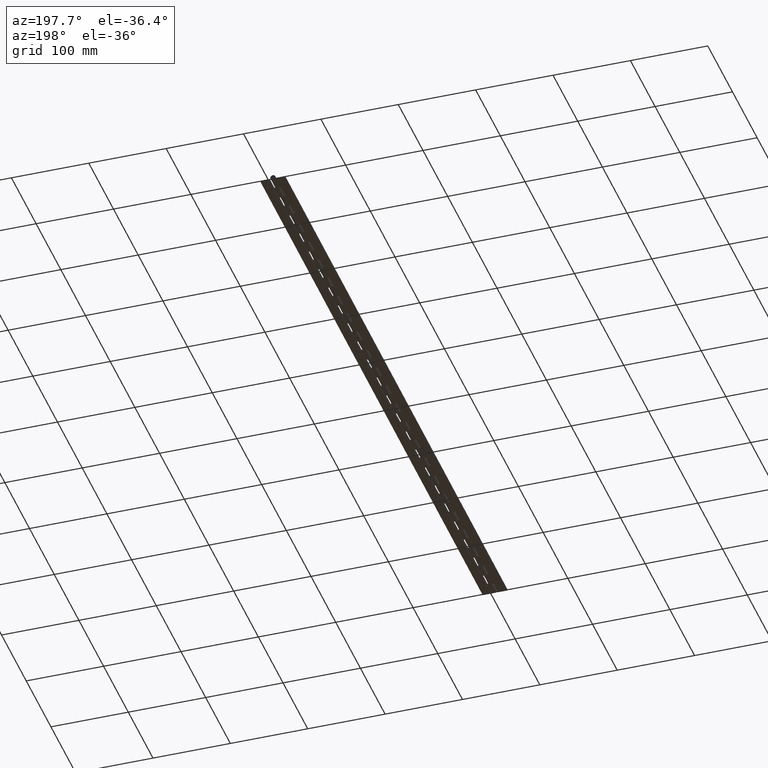
[diagram: clean part render]
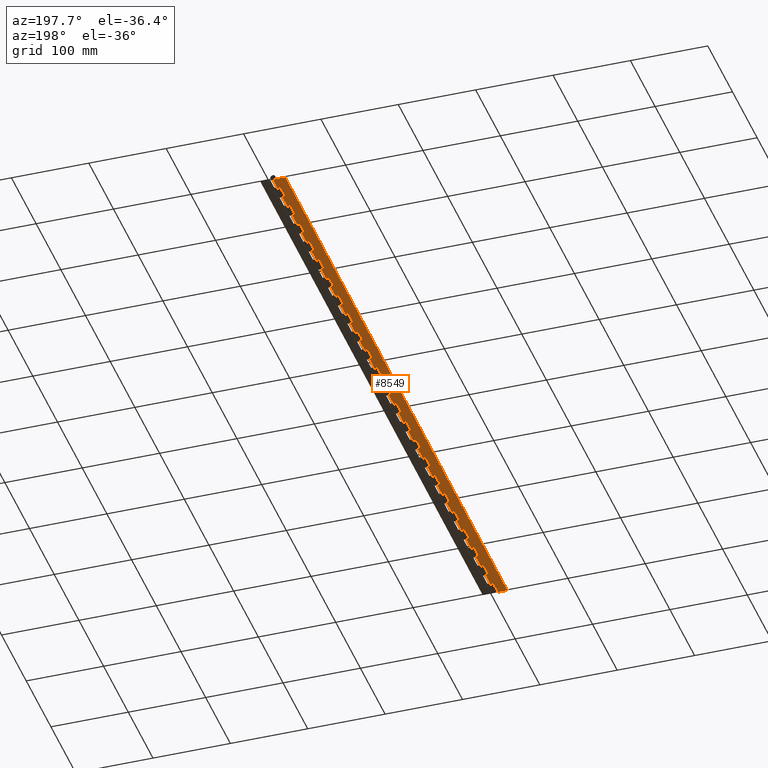
[diagram: same view with one face highlighted and labeled with its STEP entity id]
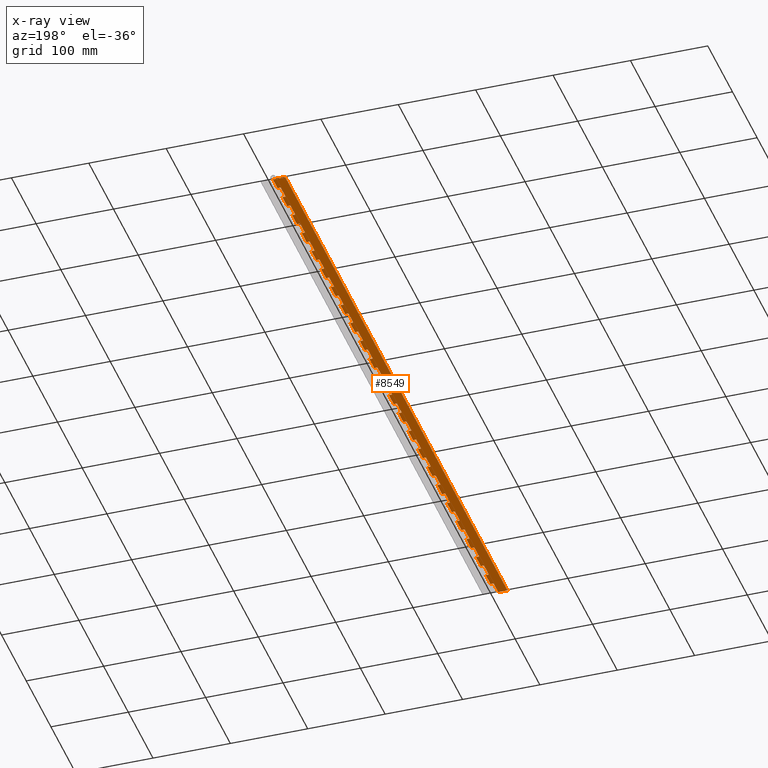
[diagram: x-ray of the same camera — body ghosted, the highlighted face saturated]
A machine part, auxiliary view. The second image highlights one B-rep face of the part: STEP entity #8549.
The next image is the same camera in x-ray: the body ghosted, the highlighted face saturated — about 0% of this face is hidden behind the body in this view.
In plain terms, the highlighted planar face has unit normal (0, 0, 1).
Its self-contained STEP definition (entity closure, byte-faithful):
#4 = DIRECTION ( 'NONE',  ( 1.327594496921025700E-016, -1.000000000000000000, 0.0000000000000000000 ) ) ;
#5 = DIRECTION ( 'NONE',  ( -1.000000000000000000, -0.0000000000000000000, 0.0000000000000000000 ) ) ;
#17 = ORIENTED_EDGE ( 'NONE', *, *, #2531, .T. ) ;
#32 = LINE ( 'NONE', #2926, #2284 ) ;
#42 = CARTESIAN_POINT ( 'NONE',  ( -3.999999824594461900, 156.8000000000000100, -3.350000000000000500 ) ) ;
#85 = ORIENTED_EDGE ( 'NONE', *, *, #4964, .T. ) ;
#100 = VECTOR ( 'NONE', #6940, 1000.000000000000000 ) ;
#111 = VERTEX_POINT ( 'NONE', #2517 ) ;
#129 = CARTESIAN_POINT ( 'NONE',  ( -3.999999824594459200, 490.0000000000000600, -3.350000000000000500 ) ) ;
#132 = LINE ( 'NONE', #7265, #3681 ) ;
#138 = DIRECTION ( 'NONE',  ( -0.0000000000000000000, -1.000000000000000000, -0.0000000000000000000 ) ) ;
#174 = VERTEX_POINT ( 'NONE', #5519 ) ;
#187 = ORIENTED_EDGE ( 'NONE', *, *, #1105, .T. ) ;
#192 = CARTESIAN_POINT ( 'NONE',  ( 0.0000000000000000000, 39.20000000000000300, -3.350000000000000500 ) ) ;
#201 = CARTESIAN_POINT ( 'NONE',  ( -3.999999824594461900, 313.6000000000000200, -3.350000000000000500 ) ) ;
#211 = LINE ( 'NONE', #3007, #6009 ) ;
#223 = DIRECTION ( 'NONE',  ( -1.000000000000000000, -0.0000000000000000000, 0.0000000000000000000 ) ) ;
#228 = FACE_OUTER_BOUND ( 'NONE', #4986, .T. ) ;
#235 = CARTESIAN_POINT ( 'NONE',  ( -15.99999982459446300, -18.80000000000000100, -3.350000000000000500 ) ) ;
#249 = VECTOR ( 'NONE', #5, 1000.000000000000000 ) ;
#256 = EDGE_CURVE ( 'NONE', #7523, #174, #7193, .T. ) ;
#257 = CARTESIAN_POINT ( 'NONE',  ( -3.999999824594459200, 215.6000000000000500, -3.350000000000000500 ) ) ;
#261 = CARTESIAN_POINT ( 'NONE',  ( 0.0000000000000000000, 509.6000000000000800, -3.350000000000000500 ) ) ;
#266 = ORIENTED_EDGE ( 'NONE', *, *, #8337, .T. ) ;
#269 = DIRECTION ( 'NONE',  ( 1.000000000000000000, 0.0000000000000000000, 0.0000000000000000000 ) ) ;
#270 = CARTESIAN_POINT ( 'NONE',  ( -3.999999824594461900, 392.0000000000000600, -3.350000000000000500 ) ) ;
#271 = VERTEX_POINT ( 'NONE', #1017 ) ;
#276 = CARTESIAN_POINT ( 'NONE',  ( 0.0000000000000000000, 78.40000000000000600, -3.350000000000000500 ) ) ;
#298 = DIRECTION ( 'NONE',  ( 1.327594496921025700E-016, -1.000000000000000000, 0.0000000000000000000 ) ) ;
#301 = DIRECTION ( 'NONE',  ( -0.0000000000000000000, -1.000000000000000000, -0.0000000000000000000 ) ) ;
#304 = VERTEX_POINT ( 'NONE', #276 ) ;
#306 = EDGE_CURVE ( 'NONE', #8790, #4157, #8474, .T. ) ;
#315 = EDGE_CURVE ( 'NONE', #7904, #2166, #1176, .T. ) ;
#317 = DIRECTION ( 'NONE',  ( 1.327594496921025700E-016, -1.000000000000000000, 0.0000000000000000000 ) ) ;
#318 = CARTESIAN_POINT ( 'NONE',  ( 0.0000000000000000000, 646.8000000000000700, -3.350000000000000500 ) ) ;
#330 = ORIENTED_EDGE ( 'NONE', *, *, #6126, .T. ) ;
#370 = CARTESIAN_POINT ( 'NONE',  ( -15.99999982459446300, 196.0000000000000600, -3.350000000000000500 ) ) ;
#371 = VERTEX_POINT ( 'NONE', #5471 ) ;
#375 = ORIENTED_EDGE ( 'NONE', *, *, #2808, .T. ) ;
#412 = ORIENTED_EDGE ( 'NONE', *, *, #5754, .T. ) ;
#443 = EDGE_CURVE ( 'NONE', #2280, #6989, #5566, .T. ) ;
#445 = DIRECTION ( 'NONE',  ( -1.000000000000000000, -0.0000000000000000000, 0.0000000000000000000 ) ) ;
#470 = ORIENTED_EDGE ( 'NONE', *, *, #7939, .T. ) ;
#477 = ORIENTED_EDGE ( 'NONE', *, *, #5036, .T. ) ;
#479 = EDGE_CURVE ( 'NONE', #6082, #1232, #9055, .T. ) ;
#488 = ORIENTED_EDGE ( 'NONE', *, *, #5135, .T. ) ;
#499 = ORIENTED_EDGE ( 'NONE', *, *, #4109, .T. ) ;
#521 = CARTESIAN_POINT ( 'NONE',  ( -15.99999982459446300, 352.8000000000001300, -3.350000000000000500 ) ) ;
#576 = LINE ( 'NONE', #2812, #4372 ) ;
#578 = VECTOR ( 'NONE', #6796, 1000.000000000000000 ) ;
#587 = LINE ( 'NONE', #3002, #8356 ) ;
#590 = DIRECTION ( 'NONE',  ( 1.327594496921025700E-016, -1.000000000000000000, 0.0000000000000000000 ) ) ;
#603 = LINE ( 'NONE', #1953, #8369 ) ;
#606 = VERTEX_POINT ( 'NONE', #4506 ) ;
#610 = VECTOR ( 'NONE', #9616, 1000.000000000000000 ) ;
#614 = ORIENTED_EDGE ( 'NONE', *, *, #8394, .T. ) ;
#619 = VECTOR ( 'NONE', #298, 1000.000000000000000 ) ;
#648 = EDGE_CURVE ( 'NONE', #9269, #1154, #5579, .T. ) ;
#686 = LINE ( 'NONE', #9285, #6471 ) ;
#697 = VERTEX_POINT ( 'NONE', #4547 ) ;
#740 = DIRECTION ( 'NONE',  ( 1.327594496921025700E-016, -1.000000000000000000, 0.0000000000000000000 ) ) ;
#745 = CARTESIAN_POINT ( 'NONE',  ( -3.999999824594461900, 313.6000000000000200, -3.350000000000000500 ) ) ;
#746 = DIRECTION ( 'NONE',  ( -1.000000000000000000, -0.0000000000000000000, 0.0000000000000000000 ) ) ;
#747 = ORIENTED_EDGE ( 'NONE', *, *, #2496, .T. ) ;
#755 = CARTESIAN_POINT ( 'NONE',  ( -15.99999982459446300, 823.2000000000001600, -3.350000000000000500 ) ) ;
#756 = ORIENTED_EDGE ( 'NONE', *, *, #1954, .T. ) ;
#778 = CARTESIAN_POINT ( 'NONE',  ( -3.999999824594461900, 392.0000000000000600, -3.350000000000000500 ) ) ;
#793 = EDGE_CURVE ( 'NONE', #697, #5947, #6178, .T. ) ;
#834 = ORIENTED_EDGE ( 'NONE', *, *, #4085, .T. ) ;
#858 = VERTEX_POINT ( 'NONE', #4913 ) ;
#865 = EDGE_CURVE ( 'NONE', #4622, #8790, #132, .T. ) ;
#888 = VERTEX_POINT ( 'NONE', #1939 ) ;
#892 = EDGE_CURVE ( 'NONE', #7958, #7531, #7431, .T. ) ;
#893 = CARTESIAN_POINT ( 'NONE',  ( -3.999999824594459200, 725.2000000000000500, -3.350000000000000500 ) ) ;
#894 = ORIENTED_EDGE ( 'NONE', *, *, #6775, .T. ) ;
#907 = CARTESIAN_POINT ( 'NONE',  ( 0.0000000000000000000, 470.4000000000000900, -3.350000000000000500 ) ) ;
#915 = VECTOR ( 'NONE', #7314, 1000.000000000000000 ) ;
#918 = VECTOR ( 'NONE', #7612, 1000.000000000000000 ) ;
#919 = EDGE_CURVE ( 'NONE', #1363, #606, #8949, .T. ) ;
#931 = VECTOR ( 'NONE', #1367, 1000.000000000000000 ) ;
#970 = ORIENTED_EDGE ( 'NONE', *, *, #9708, .F. ) ;
#1011 = CARTESIAN_POINT ( 'NONE',  ( -3.999999824594459200, 19.60000000000000100, -3.350000000000000500 ) ) ;
#1017 = CARTESIAN_POINT ( 'NONE',  ( 0.0000000000000000000, 490.0000000000000600, -3.350000000000000500 ) ) ;
#1040 = EDGE_CURVE ( 'NONE', #3800, #371, #7779, .T. ) ;
#1041 = DIRECTION ( 'NONE',  ( 0.0000000000000000000, 0.0000000000000000000, 1.000000000000000000 ) ) ;
#1045 = VECTOR ( 'NONE', #2577, 1000.000000000000000 ) ;
#1062 = VERTEX_POINT ( 'NONE', #907 ) ;
#1083 = LINE ( 'NONE', #4423, #8604 ) ;
#1085 = DIRECTION ( 'NONE',  ( 1.000000000000000000, 0.0000000000000000000, 0.0000000000000000000 ) ) ;
#1104 = CARTESIAN_POINT ( 'NONE',  ( -3.999999824594461900, 548.8000000000000700, -3.350000000000000500 ) ) ;
#1105 = EDGE_CURVE ( 'NONE', #888, #4553, #5319, .T. ) ;
#1125 = CARTESIAN_POINT ( 'NONE',  ( 0.0000000000000000000, 97.99999999999997200, -3.350000000000000500 ) ) ;
#1129 = EDGE_CURVE ( 'NONE', #8517, #2478, #6844, .T. ) ;
#1135 = VERTEX_POINT ( 'NONE', #778 ) ;
#1139 = CARTESIAN_POINT ( 'NONE',  ( -15.99999982459446300, 78.40000000000002000, -3.350000000000000500 ) ) ;
#1154 = VERTEX_POINT ( 'NONE', #1210 ) ;
#1155 = VECTOR ( 'NONE', #8104, 1000.000000000000000 ) ;
#1162 = ORIENTED_EDGE ( 'NONE', *, *, #443, .T. ) ;
#1176 = LINE ( 'NONE', #235, #4747 ) ;
#1195 = VECTOR ( 'NONE', #1553, 1000.000000000000000 ) ;
#1200 = EDGE_CURVE ( 'NONE', #2922, #4657, #4379, .T. ) ;
#1210 = CARTESIAN_POINT ( 'NONE',  ( -3.999999824594461900, 666.4000000000000900, -3.350000000000000500 ) ) ;
#1223 = ORIENTED_EDGE ( 'NONE', *, *, #8991, .T. ) ;
#1232 = VERTEX_POINT ( 'NONE', #3838 ) ;
#1240 = DIRECTION ( 'NONE',  ( -0.0000000000000000000, -1.000000000000000000, -0.0000000000000000000 ) ) ;
#1280 = LINE ( 'NONE', #1611, #9038 ) ;
#1286 = CARTESIAN_POINT ( 'NONE',  ( 0.0000000000000000000, 862.3999999999999800, -3.350000000000000500 ) ) ;
#1293 = VECTOR ( 'NONE', #7805, 1000.000000000000000 ) ;
#1298 = VECTOR ( 'NONE', #9267, 1000.000000000000000 ) ;
#1300 = VECTOR ( 'NONE', #6156, 1000.000000000000000 ) ;
#1312 = DIRECTION ( 'NONE',  ( 1.000000000000000000, 0.0000000000000000000, 0.0000000000000000000 ) ) ;
#1327 = DIRECTION ( 'NONE',  ( 1.327594496921025700E-016, -1.000000000000000000, 0.0000000000000000000 ) ) ;
#1328 = VECTOR ( 'NONE', #2987, 1000.000000000000000 ) ;
#1352 = ORIENTED_EDGE ( 'NONE', *, *, #2122, .T. ) ;
#1355 = DIRECTION ( 'NONE',  ( 1.000000000000000000, 0.0000000000000000000, 0.0000000000000000000 ) ) ;
#1363 = VERTEX_POINT ( 'NONE', #2180 ) ;
#1367 = DIRECTION ( 'NONE',  ( -0.0000000000000000000, -1.000000000000000000, -0.0000000000000000000 ) ) ;
#1368 = EDGE_CURVE ( 'NONE', #7856, #2922, #2956, .T. ) ;
#1380 = DIRECTION ( 'NONE',  ( -0.0000000000000000000, -1.000000000000000000, -0.0000000000000000000 ) ) ;
#1381 = ORIENTED_EDGE ( 'NONE', *, *, #5699, .T. ) ;
#1428 = CARTESIAN_POINT ( 'NONE',  ( -15.99999982459446300, 784.0000000000001100, -3.350000000000000500 ) ) ;
#1430 = EDGE_CURVE ( 'NONE', #4344, #4197, #4497, .T. ) ;
#1504 = VECTOR ( 'NONE', #3410, 1000.000000000000000 ) ;
#1519 = CARTESIAN_POINT ( 'NONE',  ( -3.999999824594459200, 764.4000000000000900, -3.350000000000000500 ) ) ;
#1536 = LINE ( 'NONE', #9298, #3547 ) ;
#1537 = LINE ( 'NONE', #2657, #5309 ) ;
#1549 = VERTEX_POINT ( 'NONE', #1125 ) ;
#1553 = DIRECTION ( 'NONE',  ( -0.0000000000000000000, -1.000000000000000000, -0.0000000000000000000 ) ) ;
#1556 = DIRECTION ( 'NONE',  ( -0.0000000000000000000, -1.000000000000000000, -0.0000000000000000000 ) ) ;
#1570 = LINE ( 'NONE', #5990, #1328 ) ;
#1573 = LINE ( 'NONE', #8817, #5344 ) ;
#1596 = ORIENTED_EDGE ( 'NONE', *, *, #8011, .T. ) ;
#1600 = CARTESIAN_POINT ( 'NONE',  ( -3.999999824594459200, 137.2000000000000200, -3.350000000000000500 ) ) ;
#1605 = VERTEX_POINT ( 'NONE', #8555 ) ;
#1611 = CARTESIAN_POINT ( 'NONE',  ( -3.999999824594459200, 411.6000000000000800, -3.350000000000000500 ) ) ;
#1688 = ORIENTED_EDGE ( 'NONE', *, *, #7808, .T. ) ;
#1708 = ORIENTED_EDGE ( 'NONE', *, *, #8867, .T. ) ;
#1713 = ORIENTED_EDGE ( 'NONE', *, *, #1200, .T. ) ;
#1732 = VERTEX_POINT ( 'NONE', #129 ) ;
#1740 = VECTOR ( 'NONE', #6381, 1000.000000000000000 ) ;
#1742 = EDGE_CURVE ( 'NONE', #6496, #7813, #3651, .T. ) ;
#1746 = VECTOR ( 'NONE', #3798, 1000.000000000000000 ) ;
#1755 = CARTESIAN_POINT ( 'NONE',  ( -3.999999824594461900, 509.6000000000000800, -3.350000000000000500 ) ) ;
#1767 = EDGE_CURVE ( 'NONE', #5615, #4452, #9383, .T. ) ;
#1771 = VECTOR ( 'NONE', #5830, 1000.000000000000000 ) ;
#1791 = VECTOR ( 'NONE', #8616, 1000.000000000000000 ) ;
#1797 = VERTEX_POINT ( 'NONE', #8279 ) ;
#1816 = CARTESIAN_POINT ( 'NONE',  ( -3.999999824594461900, 509.6000000000000800, -3.350000000000000500 ) ) ;
#1836 = ORIENTED_EDGE ( 'NONE', *, *, #2677, .T. ) ;
#1849 = EDGE_CURVE ( 'NONE', #8223, #2047, #686, .T. ) ;
#1851 = CARTESIAN_POINT ( 'NONE',  ( 0.0000000000000000000, 294.0000000000000600, -3.350000000000000500 ) ) ;
#1876 = VECTOR ( 'NONE', #7380, 1000.000000000000000 ) ;
#1878 = LINE ( 'NONE', #3871, #3657 ) ;
#1891 = LINE ( 'NONE', #6300, #9640 ) ;
#1925 = CARTESIAN_POINT ( 'NONE',  ( -3.999999824594459200, 58.80000000000000400, -3.350000000000000500 ) ) ;
#1939 = CARTESIAN_POINT ( 'NONE',  ( 4.102566777143633800E-016, 881.1999999999999300, -3.350000000000000500 ) ) ;
#1953 = CARTESIAN_POINT ( 'NONE',  ( 0.0000000000000000000, 862.3999999999999800, -3.350000000000000500 ) ) ;
#1954 = EDGE_CURVE ( 'NONE', #7581, #4443, #4484, .T. ) ;
#1977 = LINE ( 'NONE', #8573, #1740 ) ;
#1983 = CARTESIAN_POINT ( 'NONE',  ( -3.999999824594461900, 156.8000000000000100, -3.350000000000000500 ) ) ;
#1986 = LINE ( 'NONE', #8999, #9731 ) ;
#1990 = VECTOR ( 'NONE', #5840, 1000.000000000000000 ) ;
#1999 = LINE ( 'NONE', #7827, #7765 ) ;
#2029 = VERTEX_POINT ( 'NONE', #7379 ) ;
#2030 = VERTEX_POINT ( 'NONE', #2121 ) ;
#2038 = CARTESIAN_POINT ( 'NONE',  ( 0.0000000000000000000, 450.8000000000000700, -3.350000000000000500 ) ) ;
#2047 = VERTEX_POINT ( 'NONE', #4413 ) ;
#2067 = VERTEX_POINT ( 'NONE', #5924 ) ;
#2068 = CARTESIAN_POINT ( 'NONE',  ( -3.999999824594461900, 470.4000000000000900, -3.350000000000000500 ) ) ;
#2072 = ORIENTED_EDGE ( 'NONE', *, *, #865, .T. ) ;
#2094 = VECTOR ( 'NONE', #4328, 1000.000000000000000 ) ;
#2102 = CARTESIAN_POINT ( 'NONE',  ( -3.999999824594461900, 196.0000000000000300, -3.350000000000000500 ) ) ;
#2110 = LINE ( 'NONE', #6213, #100 ) ;
#2121 = CARTESIAN_POINT ( 'NONE',  ( -3.999999824594461900, 705.6000000000001400, -3.350000000000000500 ) ) ;
#2122 = EDGE_CURVE ( 'NONE', #1605, #8208, #1570, .T. ) ;
#2123 = CARTESIAN_POINT ( 'NONE',  ( 0.0000000000000000000, 862.3999999999999800, -3.350000000000000500 ) ) ;
#2136 = LINE ( 'NONE', #3059, #8115 ) ;
#2145 = CARTESIAN_POINT ( 'NONE',  ( -3.999999824594461900, 235.2000000000000500, -3.350000000000000500 ) ) ;
#2165 = LINE ( 'NONE', #3785, #3937 ) ;
#2166 = VERTEX_POINT ( 'NONE', #2296 ) ;
#2180 = CARTESIAN_POINT ( 'NONE',  ( -3.999999824594459200, 372.4000000000000900, -3.350000000000000500 ) ) ;
#2199 = DIRECTION ( 'NONE',  ( -1.000000000000000000, -0.0000000000000000000, 0.0000000000000000000 ) ) ;
#2222 = CARTESIAN_POINT ( 'NONE',  ( -3.999999824594461900, 588.0000000000001100, -3.350000000000000500 ) ) ;
#2228 = VERTEX_POINT ( 'NONE', #6898 ) ;
#2235 = CARTESIAN_POINT ( 'NONE',  ( -3.999999824594459200, 842.8000000000000700, -3.350000000000000500 ) ) ;
#2259 = VERTEX_POINT ( 'NONE', #6160 ) ;
#2271 = DIRECTION ( 'NONE',  ( 1.000000000000000000, 0.0000000000000000000, 0.0000000000000000000 ) ) ;
#2280 = VERTEX_POINT ( 'NONE', #5465 ) ;
#2284 = VECTOR ( 'NONE', #8167, 1000.000000000000000 ) ;
#2296 = CARTESIAN_POINT ( 'NONE',  ( -3.999999824594460100, -18.80000000000000100, -3.350000000000000500 ) ) ;
#2312 = CARTESIAN_POINT ( 'NONE',  ( -3.999999824594459200, 294.0000000000000600, -3.350000000000000500 ) ) ;
#2335 = VECTOR ( 'NONE', #8767, 1000.000000000000000 ) ;
#2341 = VECTOR ( 'NONE', #3243, 1000.000000000000000 ) ;
#2343 = VECTOR ( 'NONE', #9134, 1000.000000000000000 ) ;
#2357 = ORIENTED_EDGE ( 'NONE', *, *, #6871, .T. ) ;
#2371 = LINE ( 'NONE', #1519, #578 ) ;
#2390 = ORIENTED_EDGE ( 'NONE', *, *, #1767, .T. ) ;
#2404 = LINE ( 'NONE', #4405, #610 ) ;
#2418 = EDGE_CURVE ( 'NONE', #7928, #1732, #6646, .T. ) ;
#2444 = DIRECTION ( 'NONE',  ( 1.327594496921025700E-016, -1.000000000000000000, 0.0000000000000000000 ) ) ;
#2478 = VERTEX_POINT ( 'NONE', #3441 ) ;
#2479 = CARTESIAN_POINT ( 'NONE',  ( 0.0000000000000000000, 254.8000000000000400, -3.350000000000000500 ) ) ;
#2481 = VECTOR ( 'NONE', #8321, 1000.000000000000000 ) ;
#2490 = VECTOR ( 'NONE', #4319, 1000.000000000000000 ) ;
#2495 = LINE ( 'NONE', #4058, #8226 ) ;
#2496 = EDGE_CURVE ( 'NONE', #4456, #2030, #3952, .T. ) ;
#2517 = CARTESIAN_POINT ( 'NONE',  ( 0.0000000000000000000, 803.6000000000001400, -3.350000000000000500 ) ) ;
#2527 = LINE ( 'NONE', #7198, #4539 ) ;
#2531 = EDGE_CURVE ( 'NONE', #7813, #7581, #5712, .T. ) ;
#2558 = DIRECTION ( 'NONE',  ( 1.000000000000000000, 0.0000000000000000000, 0.0000000000000000000 ) ) ;
#2574 = DIRECTION ( 'NONE',  ( -0.0000000000000000000, -1.000000000000000000, -0.0000000000000000000 ) ) ;
#2577 = DIRECTION ( 'NONE',  ( 1.000000000000000000, 0.0000000000000000000, 0.0000000000000000000 ) ) ;
#2582 = EDGE_CURVE ( 'NONE', #9437, #9703, #3239, .T. ) ;
#2620 = VERTEX_POINT ( 'NONE', #6585 ) ;
#2625 = CARTESIAN_POINT ( 'NONE',  ( 0.0000000000000000000, 862.3999999999999800, -3.350000000000000500 ) ) ;
#2636 = EDGE_CURVE ( 'NONE', #3415, #2280, #2993, .T. ) ;
#2655 = ORIENTED_EDGE ( 'NONE', *, *, #2582, .T. ) ;
#2657 = CARTESIAN_POINT ( 'NONE',  ( 0.0000000000000000000, 862.3999999999999800, -3.350000000000000500 ) ) ;
#2677 = EDGE_CURVE ( 'NONE', #6901, #3563, #32, .T. ) ;
#2693 = LINE ( 'NONE', #2788, #1990 ) ;
#2704 = VERTEX_POINT ( 'NONE', #6681 ) ;
#2741 = VECTOR ( 'NONE', #6929, 1000.000000000000000 ) ;
#2748 = DIRECTION ( 'NONE',  ( -1.000000000000000000, -0.0000000000000000000, 0.0000000000000000000 ) ) ;
#2786 = ORIENTED_EDGE ( 'NONE', *, *, #1849, .T. ) ;
#2788 = CARTESIAN_POINT ( 'NONE',  ( -3.999999824594461900, 627.2000000000000500, -3.350000000000000500 ) ) ;
#2802 = CARTESIAN_POINT ( 'NONE',  ( -3.999999824594461900, 666.4000000000000900, -3.350000000000000500 ) ) ;
#2804 = VERTEX_POINT ( 'NONE', #8765 ) ;
#2808 = EDGE_CURVE ( 'NONE', #1154, #3247, #8841, .T. ) ;
#2812 = CARTESIAN_POINT ( 'NONE',  ( -15.99999982459446300, 392.0000000000000600, -3.350000000000000500 ) ) ;
#2829 = VECTOR ( 'NONE', #3738, 1000.000000000000000 ) ;
#2837 = EDGE_CURVE ( 'NONE', #6208, #8517, #8379, .T. ) ;
#2847 = CARTESIAN_POINT ( 'NONE',  ( 0.0000000000000000000, 725.2000000000000500, -3.350000000000000500 ) ) ;
#2856 = EDGE_CURVE ( 'NONE', #4657, #2259, #2404, .T. ) ;
#2877 = ORIENTED_EDGE ( 'NONE', *, *, #9489, .T. ) ;
#2900 = CARTESIAN_POINT ( 'NONE',  ( -3.999999824594461900, 823.2000000000001600, -3.350000000000000500 ) ) ;
#2906 = ORIENTED_EDGE ( 'NONE', *, *, #4093, .T. ) ;
#2909 = CARTESIAN_POINT ( 'NONE',  ( -3.999999824594461900, 431.2000000000001000, -3.350000000000000500 ) ) ;
#2922 = VERTEX_POINT ( 'NONE', #8937 ) ;
#2926 = CARTESIAN_POINT ( 'NONE',  ( 0.0000000000000000000, 862.3999999999999800, -3.350000000000000500 ) ) ;
#2936 = LINE ( 'NONE', #3127, #918 ) ;
#2945 = VERTEX_POINT ( 'NONE', #2979 ) ;
#2955 = VERTEX_POINT ( 'NONE', #6766 ) ;
#2956 = LINE ( 'NONE', #8138, #931 ) ;
#2976 = ORIENTED_EDGE ( 'NONE', *, *, #9644, .T. ) ;
#2978 = EDGE_CURVE ( 'NONE', #2804, #5737, #9199, .T. ) ;
#2979 = CARTESIAN_POINT ( 'NONE',  ( 0.0000000000000000000, 392.0000000000000600, -3.350000000000000500 ) ) ;
#2987 = DIRECTION ( 'NONE',  ( -0.0000000000000000000, -1.000000000000000000, -0.0000000000000000000 ) ) ;
#2993 = LINE ( 'NONE', #8828, #8497 ) ;
#2996 = EDGE_CURVE ( 'NONE', #8233, #7904, #7210, .T. ) ;
#3002 = CARTESIAN_POINT ( 'NONE',  ( -3.999999824594461900, 784.0000000000001100, -3.350000000000000500 ) ) ;
#3007 = CARTESIAN_POINT ( 'NONE',  ( 0.0000000000000000000, 862.3999999999999800, -3.350000000000000500 ) ) ;
#3049 = VECTOR ( 'NONE', #2748, 1000.000000000000000 ) ;
#3050 = CARTESIAN_POINT ( 'NONE',  ( 0.0000000000000000000, 196.0000000000000300, -3.350000000000000500 ) ) ;
#3059 = CARTESIAN_POINT ( 'NONE',  ( -15.99999982459446300, 156.8000000000000400, -3.350000000000000500 ) ) ;
#3096 = ORIENTED_EDGE ( 'NONE', *, *, #256, .T. ) ;
#3106 = VERTEX_POINT ( 'NONE', #6948 ) ;
#3126 = VERTEX_POINT ( 'NONE', #2479 ) ;
#3127 = CARTESIAN_POINT ( 'NONE',  ( -15.99999982459446300, 862.4000000000002000, -3.350000000000000500 ) ) ;
#3134 = CARTESIAN_POINT ( 'NONE',  ( 0.0000000000000000000, 862.4000000000002000, -3.350000000000000500 ) ) ;
#3137 = CARTESIAN_POINT ( 'NONE',  ( 0.0000000000000000000, 862.3999999999999800, -3.350000000000000500 ) ) ;
#3142 = ORIENTED_EDGE ( 'NONE', *, *, #3189, .T. ) ;
#3146 = CARTESIAN_POINT ( 'NONE',  ( -3.999999824594461900, 548.8000000000000700, -3.350000000000000500 ) ) ;
#3153 = EDGE_CURVE ( 'NONE', #2029, #2228, #9530, .T. ) ;
#3162 = EDGE_CURVE ( 'NONE', #7631, #1605, #9305, .T. ) ;
#3189 = EDGE_CURVE ( 'NONE', #7564, #5284, #5334, .T. ) ;
#3193 = CARTESIAN_POINT ( 'NONE',  ( 0.0000000000000000000, 764.4000000000000900, -3.350000000000000500 ) ) ;
#3196 = LINE ( 'NONE', #6737, #8922 ) ;
#3207 = LINE ( 'NONE', #370, #6963 ) ;
#3214 = VECTOR ( 'NONE', #5720, 1000.000000000000000 ) ;
#3227 = EDGE_CURVE ( 'NONE', #371, #7631, #7094, .T. ) ;
#3228 = CARTESIAN_POINT ( 'NONE',  ( 0.0000000000000000000, 862.3999999999999800, -3.350000000000000500 ) ) ;
#3239 = LINE ( 'NONE', #521, #4992 ) ;
#3240 = LINE ( 'NONE', #5609, #5232 ) ;
#3243 = DIRECTION ( 'NONE',  ( 1.000000000000000000, 0.0000000000000000000, 0.0000000000000000000 ) ) ;
#3247 = VERTEX_POINT ( 'NONE', #4117 ) ;
#3252 = CARTESIAN_POINT ( 'NONE',  ( 0.0000000000000000000, 862.3999999999999800, -3.350000000000000500 ) ) ;
#3254 = CARTESIAN_POINT ( 'NONE',  ( -15.99999982459446300, -18.80000000000000100, -3.350000000000000500 ) ) ;
#3281 = AXIS2_PLACEMENT_3D ( 'NONE', #4823, #1041, #6343 ) ;
#3284 = CARTESIAN_POINT ( 'NONE',  ( 0.0000000000000000000, 313.6000000000000200, -3.350000000000000500 ) ) ;
#3318 = CARTESIAN_POINT ( 'NONE',  ( -3.999999824594461900, 862.4000000000002000, -3.350000000000000500 ) ) ;
#3319 = CARTESIAN_POINT ( 'NONE',  ( -3.999999824594461900, 196.0000000000000300, -3.350000000000000500 ) ) ;
#3337 = LINE ( 'NONE', #2625, #1791 ) ;
#3358 = CARTESIAN_POINT ( 'NONE',  ( 0.0000000000000000000, 862.3999999999999800, -3.350000000000000500 ) ) ;
#3374 = EDGE_CURVE ( 'NONE', #111, #1797, #5690, .T. ) ;
#3410 = DIRECTION ( 'NONE',  ( -1.000000000000000000, -0.0000000000000000000, 0.0000000000000000000 ) ) ;
#3415 = VERTEX_POINT ( 'NONE', #5727 ) ;
#3427 = VECTOR ( 'NONE', #2199, 1000.000000000000000 ) ;
#3441 = CARTESIAN_POINT ( 'NONE',  ( 0.0000000000000000000, 823.2000000000001600, -3.350000000000000500 ) ) ;
#3448 = VECTOR ( 'NONE', #9590, 1000.000000000000000 ) ;
#3464 = ORIENTED_EDGE ( 'NONE', *, *, #3162, .T. ) ;
#3518 = ORIENTED_EDGE ( 'NONE', *, *, #8156, .T. ) ;
#3519 = ORIENTED_EDGE ( 'NONE', *, *, #7155, .T. ) ;
#3537 = EDGE_CURVE ( 'NONE', #4157, #5973, #6047, .T. ) ;
#3547 = VECTOR ( 'NONE', #2558, 1000.000000000000000 ) ;
#3563 = VERTEX_POINT ( 'NONE', #5915 ) ;
#3566 = VECTOR ( 'NONE', #4306, 1000.000000000000000 ) ;
#3567 = CARTESIAN_POINT ( 'NONE',  ( -3.999999824594459200, 686.0000000000000000, -3.350000000000000500 ) ) ;
#3586 = DIRECTION ( 'NONE',  ( 1.000000000000000000, 0.0000000000000000000, 0.0000000000000000000 ) ) ;
#3625 = CARTESIAN_POINT ( 'NONE',  ( -15.99999982459446300, 744.8000000000001800, -3.350000000000000500 ) ) ;
#3626 = DIRECTION ( 'NONE',  ( -1.000000000000000000, -0.0000000000000000000, 0.0000000000000000000 ) ) ;
#3651 = LINE ( 'NONE', #3137, #7409 ) ;
#3657 = VECTOR ( 'NONE', #9108, 1000.000000000000000 ) ;
#3663 = DIRECTION ( 'NONE',  ( 1.327594496921025700E-016, -1.000000000000000000, 0.0000000000000000000 ) ) ;
#3671 = CARTESIAN_POINT ( 'NONE',  ( 0.0000000000000000000, 627.2000000000000500, -3.350000000000000500 ) ) ;
#3677 = CARTESIAN_POINT ( 'NONE',  ( 0.0000000000000000000, 0.0000000000000000000, -3.350000000000000500 ) ) ;
#3681 = VECTOR ( 'NONE', #8686, 1000.000000000000000 ) ;
#3685 = VECTOR ( 'NONE', #1240, 1000.000000000000000 ) ;
#3738 = DIRECTION ( 'NONE',  ( 1.000000000000000000, 0.0000000000000000000, 0.0000000000000000000 ) ) ;
#3785 = CARTESIAN_POINT ( 'NONE',  ( -3.999999824594459200, 215.6000000000000500, -3.350000000000000500 ) ) ;
#3798 = DIRECTION ( 'NONE',  ( 1.327594496921025700E-016, -1.000000000000000000, 0.0000000000000000000 ) ) ;
#3800 = VERTEX_POINT ( 'NONE', #192 ) ;
#3821 = DIRECTION ( 'NONE',  ( -0.0000000000000000000, -1.000000000000000000, -0.0000000000000000000 ) ) ;
#3824 = ORIENTED_EDGE ( 'NONE', *, *, #9416, .T. ) ;
#3838 = CARTESIAN_POINT ( 'NONE',  ( 0.0000000000000000000, 137.1999999999999900, -3.350000000000000500 ) ) ;
#3857 = ORIENTED_EDGE ( 'NONE', *, *, #9596, .T. ) ;
#3871 = CARTESIAN_POINT ( 'NONE',  ( -3.999999824594461900, 235.2000000000000500, -3.350000000000000500 ) ) ;
#3877 = CARTESIAN_POINT ( 'NONE',  ( 0.0000000000000000000, 176.4000000000000100, -3.350000000000000500 ) ) ;
#3899 = ORIENTED_EDGE ( 'NONE', *, *, #306, .T. ) ;
#3908 = CARTESIAN_POINT ( 'NONE',  ( 0.0000000000000000000, 862.3999999999999800, -3.350000000000000500 ) ) ;
#3937 = VECTOR ( 'NONE', #2271, 1000.000000000000000 ) ;
#3952 = LINE ( 'NONE', #9419, #7913 ) ;
#3971 = DIRECTION ( 'NONE',  ( -1.000000000000000000, -0.0000000000000000000, 0.0000000000000000000 ) ) ;
#3994 = VECTOR ( 'NONE', #9307, 1000.000000000000000 ) ;
#3996 = CARTESIAN_POINT ( 'NONE',  ( 0.0000000000000000000, 842.8000000000000700, -3.350000000000000500 ) ) ;
#4008 = VECTOR ( 'NONE', #3663, 1000.000000000000000 ) ;
#4024 = CARTESIAN_POINT ( 'NONE',  ( -3.999999824594461900, 274.4000000000000300, -3.350000000000000500 ) ) ;
#4032 = VECTOR ( 'NONE', #3626, 1000.000000000000000 ) ;
#4040 = ORIENTED_EDGE ( 'NONE', *, *, #3153, .T. ) ;
#4058 = CARTESIAN_POINT ( 'NONE',  ( -3.999999824594459200, 98.00000000000001400, -3.350000000000000500 ) ) ;
#4073 = CARTESIAN_POINT ( 'NONE',  ( 0.0000000000000000000, 411.6000000000000800, -3.350000000000000500 ) ) ;
#4082 = CARTESIAN_POINT ( 'NONE',  ( 0.0000000000000000000, 862.3999999999999800, -3.350000000000000500 ) ) ;
#4085 = EDGE_CURVE ( 'NONE', #7531, #6901, #1536, .T. ) ;
#4093 = EDGE_CURVE ( 'NONE', #4197, #111, #5308, .T. ) ;
#4109 = EDGE_CURVE ( 'NONE', #4443, #3126, #9049, .T. ) ;
#4117 = CARTESIAN_POINT ( 'NONE',  ( -3.999999824594459200, 646.8000000000000700, -3.350000000000000500 ) ) ;
#4131 = LINE ( 'NONE', #42, #7874 ) ;
#4150 = VECTOR ( 'NONE', #1312, 1000.000000000000000 ) ;
#4157 = VERTEX_POINT ( 'NONE', #4895 ) ;
#4180 = CARTESIAN_POINT ( 'NONE',  ( -3.999999824594459200, 333.2000000000000500, -3.350000000000000500 ) ) ;
#4193 = DIRECTION ( 'NONE',  ( -1.000000000000000000, -0.0000000000000000000, 0.0000000000000000000 ) ) ;
#4197 = VERTEX_POINT ( 'NONE', #7950 ) ;
#4210 = CARTESIAN_POINT ( 'NONE',  ( -3.999999824594459200, 137.2000000000000200, -3.350000000000000500 ) ) ;
#4217 = VECTOR ( 'NONE', #7056, 1000.000000000000000 ) ;
#4226 = ORIENTED_EDGE ( 'NONE', *, *, #892, .T. ) ;
#4240 = ORIENTED_EDGE ( 'NONE', *, *, #5239, .T. ) ;
#4245 = VECTOR ( 'NONE', #7044, 1000.000000000000000 ) ;
#4266 = LINE ( 'NONE', #755, #249 ) ;
#4306 = DIRECTION ( 'NONE',  ( -1.000000000000000000, -0.0000000000000000000, 0.0000000000000000000 ) ) ;
#4309 = ORIENTED_EDGE ( 'NONE', *, *, #7185, .T. ) ;
#4319 = DIRECTION ( 'NONE',  ( 1.327594496921025700E-016, -1.000000000000000000, 0.0000000000000000000 ) ) ;
#4322 = EDGE_CURVE ( 'NONE', #271, #1062, #9162, .T. ) ;
#4328 = DIRECTION ( 'NONE',  ( -0.0000000000000000000, -1.000000000000000000, -0.0000000000000000000 ) ) ;
#4330 = CARTESIAN_POINT ( 'NONE',  ( 0.0000000000000000000, 862.3999999999999800, -3.350000000000000500 ) ) ;
#4339 = LINE ( 'NONE', #6540, #2335 ) ;
#4344 = VERTEX_POINT ( 'NONE', #2900 ) ;
#4365 = CARTESIAN_POINT ( 'NONE',  ( -3.999999824594459200, 842.8000000000000700, -3.350000000000000500 ) ) ;
#4372 = VECTOR ( 'NONE', #8809, 1000.000000000000000 ) ;
#4378 = ORIENTED_EDGE ( 'NONE', *, *, #1430, .T. ) ;
#4379 = LINE ( 'NONE', #3625, #8110 ) ;
#4405 = CARTESIAN_POINT ( 'NONE',  ( -3.999999824594461900, 744.8000000000001800, -3.350000000000000500 ) ) ;
#4413 = CARTESIAN_POINT ( 'NONE',  ( -3.999999824594459200, 411.6000000000000800, -3.350000000000000500 ) ) ;
#4423 = CARTESIAN_POINT ( 'NONE',  ( -3.999999824594463700, 0.0000000000000000000, -3.350000000000000500 ) ) ;
#4436 = CARTESIAN_POINT ( 'NONE',  ( 2.051283388571816900E-016, 881.1999999999999300, -3.350000000000000500 ) ) ;
#4443 = VERTEX_POINT ( 'NONE', #6005 ) ;
#4452 = VERTEX_POINT ( 'NONE', #745 ) ;
#4456 = VERTEX_POINT ( 'NONE', #6049 ) ;
#4461 = ORIENTED_EDGE ( 'NONE', *, *, #6663, .T. ) ;
#4484 = LINE ( 'NONE', #4024, #4008 ) ;
#4497 = LINE ( 'NONE', #5867, #2490 ) ;
#4506 = CARTESIAN_POINT ( 'NONE',  ( 0.0000000000000000000, 372.4000000000000900, -3.350000000000000500 ) ) ;
#4539 = VECTOR ( 'NONE', #7941, 1000.000000000000000 ) ;
#4540 = CARTESIAN_POINT ( 'NONE',  ( -3.999999824594461900, 117.6000000000000100, -3.350000000000000500 ) ) ;
#4541 = EDGE_CURVE ( 'NONE', #2047, #8548, #1280, .T. ) ;
#4547 = CARTESIAN_POINT ( 'NONE',  ( -3.999999824594459200, 529.2000000000000500, -3.350000000000000500 ) ) ;
#4553 = VERTEX_POINT ( 'NONE', #3134 ) ;
#4578 = EDGE_CURVE ( 'NONE', #1732, #271, #2110, .T. ) ;
#4591 = LINE ( 'NONE', #8434, #2341 ) ;
#4616 = ORIENTED_EDGE ( 'NONE', *, *, #5524, .T. ) ;
#4622 = VERTEX_POINT ( 'NONE', #6274 ) ;
#4634 = ORIENTED_EDGE ( 'NONE', *, *, #8577, .T. ) ;
#4651 = VERTEX_POINT ( 'NONE', #257 ) ;
#4657 = VERTEX_POINT ( 'NONE', #9252 ) ;
#4666 = DIRECTION ( 'NONE',  ( -0.0000000000000000000, -1.000000000000000000, -0.0000000000000000000 ) ) ;
#4683 = CARTESIAN_POINT ( 'NONE',  ( 0.0000000000000000000, 666.4000000000000900, -3.350000000000000500 ) ) ;
#4732 = CARTESIAN_POINT ( 'NONE',  ( 0.0000000000000000000, 862.3999999999999800, -3.350000000000000500 ) ) ;
#4747 = VECTOR ( 'NONE', #1085, 1000.000000000000000 ) ;
#4762 = LINE ( 'NONE', #893, #2741 ) ;
#4786 = EDGE_CURVE ( 'NONE', #2067, #5615, #211, .T. ) ;
#4802 = EDGE_CURVE ( 'NONE', #6989, #8624, #1986, .T. ) ;
#4807 = EDGE_CURVE ( 'NONE', #2228, #2704, #5771, .T. ) ;
#4811 = DIRECTION ( 'NONE',  ( 1.845450506358305300E-016, -1.000000000000000000, 0.0000000000000000000 ) ) ;
#4823 = CARTESIAN_POINT ( 'NONE',  ( -15.99999982459446300, 862.3999999999999800, -3.350000000000000500 ) ) ;
#4833 = VERTEX_POINT ( 'NONE', #2312 ) ;
#4873 = ORIENTED_EDGE ( 'NONE', *, *, #6747, .T. ) ;
#4895 = CARTESIAN_POINT ( 'NONE',  ( 0.0000000000000000000, 588.0000000000001100, -3.350000000000000500 ) ) ;
#4913 = CARTESIAN_POINT ( 'NONE',  ( 0.0000000000000000000, 215.6000000000000200, -3.350000000000000500 ) ) ;
#4926 = DIRECTION ( 'NONE',  ( -0.0000000000000000000, -1.000000000000000000, -0.0000000000000000000 ) ) ;
#4930 = DIRECTION ( 'NONE',  ( 1.000000000000000000, 0.0000000000000000000, 0.0000000000000000000 ) ) ;
#4939 = ORIENTED_EDGE ( 'NONE', *, *, #919, .T. ) ;
#4964 = EDGE_CURVE ( 'NONE', #3247, #8607, #4591, .T. ) ;
#4978 = ORIENTED_EDGE ( 'NONE', *, *, #6015, .T. ) ;
#4986 = EDGE_LOOP ( 'NONE', ( #187, #1688, #6843, #9261, #5245, #4978, #4378, #2906, #8832, #4873, #6812, #6086, #8795, #1713, #6553, #4616, #8822, #747, #488, #5671, #412, #6399, #375, #85, #9330, #2357, #1223, #2072, #3899, #8608, #4309, #5813, #1162, #5513, #9652, #5697, #1381, #2877, #9374, #9103, #7360, #8920, #3142, #5607, #3096, #8708, #2786, #8707, #2976, #4461, #6203, #4939, #3519, #2655, #4240, #1708, #6889, #2390, #5937, #3857, #5078, #17, #756, #499, #4634, #894, #614, #8142, #330, #1596, #4226, #834, #1836, #8352, #266, #6102, #3824, #4040, #5995, #7908, #5709, #5650, #8620, #3518, #477, #5139, #5675, #3464, #1352, #7104, #470, #9012, #8965, #970 ) ) ;
#4992 = VECTOR ( 'NONE', #5815, 1000.000000000000000 ) ;
#5003 = VERTEX_POINT ( 'NONE', #261 ) ;
#5036 = EDGE_CURVE ( 'NONE', #7381, #3800, #3240, .T. ) ;
#5065 = CARTESIAN_POINT ( 'NONE',  ( -3.999999824594459200, 529.2000000000000500, -3.350000000000000500 ) ) ;
#5078 = ORIENTED_EDGE ( 'NONE', *, *, #1742, .T. ) ;
#5130 = CARTESIAN_POINT ( 'NONE',  ( -3.999999824594459200, 450.8000000000000700, -3.350000000000000500 ) ) ;
#5135 = EDGE_CURVE ( 'NONE', #2030, #8758, #2527, .T. ) ;
#5136 = CARTESIAN_POINT ( 'NONE',  ( 0.0000000000000000000, 607.6000000000000200, -3.350000000000000500 ) ) ;
#5139 = ORIENTED_EDGE ( 'NONE', *, *, #1040, .T. ) ;
#5178 = VECTOR ( 'NONE', #6915, 1000.000000000000000 ) ;
#5219 = VECTOR ( 'NONE', #8285, 1000.000000000000000 ) ;
#5232 = VECTOR ( 'NONE', #6360, 1000.000000000000000 ) ;
#5239 = EDGE_CURVE ( 'NONE', #9703, #6978, #1573, .T. ) ;
#5245 = ORIENTED_EDGE ( 'NONE', *, *, #1129, .T. ) ;
#5284 = VERTEX_POINT ( 'NONE', #5130 ) ;
#5297 = VECTOR ( 'NONE', #7739, 1000.000000000000000 ) ;
#5305 = EDGE_CURVE ( 'NONE', #8208, #3106, #1083, .T. ) ;
#5308 = LINE ( 'NONE', #8537, #1293 ) ;
#5309 = VECTOR ( 'NONE', #4926, 1000.000000000000000 ) ;
#5319 = LINE ( 'NONE', #6894, #1300 ) ;
#5334 = LINE ( 'NONE', #7042, #9075 ) ;
#5336 = VERTEX_POINT ( 'NONE', #6708 ) ;
#5344 = VECTOR ( 'NONE', #9570, 1000.000000000000000 ) ;
#5376 = DIRECTION ( 'NONE',  ( 1.000000000000000000, 0.0000000000000000000, 0.0000000000000000000 ) ) ;
#5394 = EDGE_CURVE ( 'NONE', #4651, #858, #2165, .T. ) ;
#5397 = CARTESIAN_POINT ( 'NONE',  ( 0.0000000000000000000, 274.4000000000000300, -3.350000000000000500 ) ) ;
#5465 = CARTESIAN_POINT ( 'NONE',  ( 0.0000000000000000000, 568.3999999999999800, -3.350000000000000500 ) ) ;
#5471 = CARTESIAN_POINT ( 'NONE',  ( -3.999999824594461900, 39.20000000000000300, -3.350000000000000500 ) ) ;
#5486 = VECTOR ( 'NONE', #445, 1000.000000000000000 ) ;
#5513 = ORIENTED_EDGE ( 'NONE', *, *, #4802, .T. ) ;
#5519 = CARTESIAN_POINT ( 'NONE',  ( 0.0000000000000000000, 431.2000000000001000, -3.350000000000000500 ) ) ;
#5524 = EDGE_CURVE ( 'NONE', #2259, #5902, #4762, .T. ) ;
#5549 = LINE ( 'NONE', #201, #5297 ) ;
#5566 = LINE ( 'NONE', #3358, #1298 ) ;
#5579 = LINE ( 'NONE', #6569, #3566 ) ;
#5582 = VECTOR ( 'NONE', #223, 1000.000000000000000 ) ;
#5602 = CARTESIAN_POINT ( 'NONE',  ( 0.0000000000000000000, 352.8000000000000700, -3.350000000000000500 ) ) ;
#5607 = ORIENTED_EDGE ( 'NONE', *, *, #5848, .T. ) ;
#5609 = CARTESIAN_POINT ( 'NONE',  ( 0.0000000000000000000, 862.3999999999999800, -3.350000000000000500 ) ) ;
#5615 = VERTEX_POINT ( 'NONE', #3284 ) ;
#5650 = ORIENTED_EDGE ( 'NONE', *, *, #9555, .T. ) ;
#5665 = LINE ( 'NONE', #1428, #3427 ) ;
#5671 = ORIENTED_EDGE ( 'NONE', *, *, #8275, .T. ) ;
#5674 = CARTESIAN_POINT ( 'NONE',  ( -3.999999824594459200, 372.4000000000000900, -3.350000000000000500 ) ) ;
#5675 = ORIENTED_EDGE ( 'NONE', *, *, #3227, .T. ) ;
#5690 = LINE ( 'NONE', #6528, #3685 ) ;
#5697 = ORIENTED_EDGE ( 'NONE', *, *, #793, .T. ) ;
#5699 = EDGE_CURVE ( 'NONE', #5947, #5003, #3337, .T. ) ;
#5709 = ORIENTED_EDGE ( 'NONE', *, *, #6544, .T. ) ;
#5712 = LINE ( 'NONE', #6493, #5486 ) ;
#5720 = DIRECTION ( 'NONE',  ( 1.327594496921025700E-016, -1.000000000000000000, 0.0000000000000000000 ) ) ;
#5727 = CARTESIAN_POINT ( 'NONE',  ( -3.999999824594459200, 568.3999999999999800, -3.350000000000000500 ) ) ;
#5737 = VERTEX_POINT ( 'NONE', #1925 ) ;
#5754 = EDGE_CURVE ( 'NONE', #2620, #9269, #603, .T. ) ;
#5771 = LINE ( 'NONE', #4540, #1746 ) ;
#5794 = LINE ( 'NONE', #6571, #1771 ) ;
#5798 = VECTOR ( 'NONE', #3971, 1000.000000000000000 ) ;
#5813 = ORIENTED_EDGE ( 'NONE', *, *, #2636, .T. ) ;
#5815 = DIRECTION ( 'NONE',  ( -1.000000000000000000, -0.0000000000000000000, 0.0000000000000000000 ) ) ;
#5830 = DIRECTION ( 'NONE',  ( 1.000000000000000000, 0.0000000000000000000, 0.0000000000000000000 ) ) ;
#5840 = DIRECTION ( 'NONE',  ( 1.327594496921025700E-016, -1.000000000000000000, 0.0000000000000000000 ) ) ;
#5848 = EDGE_CURVE ( 'NONE', #5284, #7523, #7896, .T. ) ;
#5851 = VERTEX_POINT ( 'NONE', #9564 ) ;
#5867 = CARTESIAN_POINT ( 'NONE',  ( -3.999999824594461900, 823.2000000000001600, -3.350000000000000500 ) ) ;
#5898 = EDGE_CURVE ( 'NONE', #8607, #9723, #9191, .T. ) ;
#5902 = VERTEX_POINT ( 'NONE', #2847 ) ;
#5915 = CARTESIAN_POINT ( 'NONE',  ( 0.0000000000000000000, 156.8000000000000100, -3.350000000000000500 ) ) ;
#5924 = CARTESIAN_POINT ( 'NONE',  ( 0.0000000000000000000, 333.2000000000000500, -3.350000000000000500 ) ) ;
#5932 = VECTOR ( 'NONE', #3586, 1000.000000000000000 ) ;
#5937 = ORIENTED_EDGE ( 'NONE', *, *, #6991, .T. ) ;
#5947 = VERTEX_POINT ( 'NONE', #8875 ) ;
#5973 = VERTEX_POINT ( 'NONE', #2222 ) ;
#5990 = CARTESIAN_POINT ( 'NONE',  ( 0.0000000000000000000, 862.3999999999999800, -3.350000000000000500 ) ) ;
#5995 = ORIENTED_EDGE ( 'NONE', *, *, #4807, .T. ) ;
#6005 = CARTESIAN_POINT ( 'NONE',  ( -3.999999824594459200, 254.8000000000000400, -3.350000000000000500 ) ) ;
#6009 = VECTOR ( 'NONE', #8241, 1000.000000000000000 ) ;
#6010 = DIRECTION ( 'NONE',  ( -1.000000000000000000, -0.0000000000000000000, 0.0000000000000000000 ) ) ;
#6015 = EDGE_CURVE ( 'NONE', #2478, #4344, #4266, .T. ) ;
#6047 = LINE ( 'NONE', #8834, #4032 ) ;
#6049 = CARTESIAN_POINT ( 'NONE',  ( 0.0000000000000000000, 705.6000000000001400, -3.350000000000000500 ) ) ;
#6082 = VERTEX_POINT ( 'NONE', #1600 ) ;
#6086 = ORIENTED_EDGE ( 'NONE', *, *, #8309, .T. ) ;
#6102 = ORIENTED_EDGE ( 'NONE', *, *, #479, .T. ) ;
#6123 = LINE ( 'NONE', #1286, #2094 ) ;
#6126 = EDGE_CURVE ( 'NONE', #858, #6831, #7312, .T. ) ;
#6156 = DIRECTION ( 'NONE',  ( -0.0000000000000000000, -1.000000000000000000, -0.0000000000000000000 ) ) ;
#6160 = CARTESIAN_POINT ( 'NONE',  ( -3.999999824594459200, 725.2000000000000500, -3.350000000000000500 ) ) ;
#6178 = LINE ( 'NONE', #5065, #4150 ) ;
#6203 = ORIENTED_EDGE ( 'NONE', *, *, #8536, .T. ) ;
#6208 = VERTEX_POINT ( 'NONE', #2235 ) ;
#6211 = EDGE_CURVE ( 'NONE', #7133, #5851, #587, .T. ) ;
#6213 = CARTESIAN_POINT ( 'NONE',  ( -3.999999824594459200, 490.0000000000000600, -3.350000000000000500 ) ) ;
#6238 = EDGE_CURVE ( 'NONE', #3563, #8107, #2136, .T. ) ;
#6246 = CARTESIAN_POINT ( 'NONE',  ( -15.99999982459446300, 39.20000000000001000, -3.350000000000000500 ) ) ;
#6255 = CARTESIAN_POINT ( 'NONE',  ( 0.0000000000000000000, 548.8000000000000700, -3.350000000000000500 ) ) ;
#6264 = LINE ( 'NONE', #6867, #2481 ) ;
#6268 = LINE ( 'NONE', #270, #4245 ) ;
#6274 = CARTESIAN_POINT ( 'NONE',  ( -3.999999824594459200, 607.6000000000000200, -3.350000000000000500 ) ) ;
#6283 = CARTESIAN_POINT ( 'NONE',  ( -15.99999982459446300, 117.6000000000000400, -3.350000000000000500 ) ) ;
#6300 = CARTESIAN_POINT ( 'NONE',  ( -3.999999824594463700, 0.0000000000000000000, -3.350000000000000500 ) ) ;
#6315 = DIRECTION ( 'NONE',  ( 1.000000000000000000, 0.0000000000000000000, 0.0000000000000000000 ) ) ;
#6343 = DIRECTION ( 'NONE',  ( 1.000000000000000000, 0.0000000000000000000, -0.0000000000000000000 ) ) ;
#6360 = DIRECTION ( 'NONE',  ( -0.0000000000000000000, -1.000000000000000000, -0.0000000000000000000 ) ) ;
#6381 = DIRECTION ( 'NONE',  ( -1.000000000000000000, -0.0000000000000000000, 0.0000000000000000000 ) ) ;
#6399 = ORIENTED_EDGE ( 'NONE', *, *, #648, .T. ) ;
#6407 = VECTOR ( 'NONE', #1355, 1000.000000000000000 ) ;
#6434 = EDGE_CURVE ( 'NONE', #2704, #1549, #2495, .T. ) ;
#6464 = VECTOR ( 'NONE', #1380, 1000.000000000000000 ) ;
#6471 = VECTOR ( 'NONE', #2444, 1000.000000000000000 ) ;
#6493 = CARTESIAN_POINT ( 'NONE',  ( -15.99999982459446300, 274.4000000000000900, -3.350000000000000500 ) ) ;
#6495 = VECTOR ( 'NONE', #3821, 1000.000000000000000 ) ;
#6496 = VERTEX_POINT ( 'NONE', #1851 ) ;
#6528 = CARTESIAN_POINT ( 'NONE',  ( 0.0000000000000000000, 862.3999999999999800, -3.350000000000000500 ) ) ;
#6540 = CARTESIAN_POINT ( 'NONE',  ( -3.999999824594459200, 294.0000000000000600, -3.350000000000000500 ) ) ;
#6544 = EDGE_CURVE ( 'NONE', #1549, #304, #1537, .T. ) ;
#6553 = ORIENTED_EDGE ( 'NONE', *, *, #2856, .T. ) ;
#6569 = CARTESIAN_POINT ( 'NONE',  ( -15.99999982459446300, 666.4000000000000900, -3.350000000000000500 ) ) ;
#6571 = CARTESIAN_POINT ( 'NONE',  ( -3.999999824594459200, 58.80000000000000400, -3.350000000000000500 ) ) ;
#6585 = CARTESIAN_POINT ( 'NONE',  ( 0.0000000000000000000, 686.0000000000000000, -3.350000000000000500 ) ) ;
#6602 = LINE ( 'NONE', #8980, #2829 ) ;
#6635 = CARTESIAN_POINT ( 'NONE',  ( -3.999999824594461900, 588.0000000000001100, -3.350000000000000500 ) ) ;
#6637 = VECTOR ( 'NONE', #1327, 1000.000000000000000 ) ;
#6646 = LINE ( 'NONE', #1816, #619 ) ;
#6663 = EDGE_CURVE ( 'NONE', #2945, #1135, #576, .T. ) ;
#6672 = DIRECTION ( 'NONE',  ( -1.000000000000000000, -0.0000000000000000000, -0.0000000000000000000 ) ) ;
#6681 = CARTESIAN_POINT ( 'NONE',  ( -3.999999824594459200, 98.00000000000001400, -3.350000000000000500 ) ) ;
#6701 = EDGE_CURVE ( 'NONE', #1062, #7564, #9625, .T. ) ;
#6703 = LINE ( 'NONE', #7376, #6464 ) ;
#6708 = CARTESIAN_POINT ( 'NONE',  ( -3.999999824594461900, 627.2000000000000500, -3.350000000000000500 ) ) ;
#6737 = CARTESIAN_POINT ( 'NONE',  ( -15.99999982459446300, 235.2000000000000700, -3.350000000000000500 ) ) ;
#6747 = EDGE_CURVE ( 'NONE', #1797, #7133, #5665, .T. ) ;
#6766 = CARTESIAN_POINT ( 'NONE',  ( -3.999999824594461900, 862.4000000000002000, -3.350000000000000500 ) ) ;
#6775 = EDGE_CURVE ( 'NONE', #7219, #8820, #3196, .T. ) ;
#6792 = CARTESIAN_POINT ( 'NONE',  ( -3.999999824594461900, 78.40000000000000600, -3.350000000000000500 ) ) ;
#6796 = DIRECTION ( 'NONE',  ( 1.000000000000000000, 0.0000000000000000000, 0.0000000000000000000 ) ) ;
#6812 = ORIENTED_EDGE ( 'NONE', *, *, #6211, .T. ) ;
#6820 = CARTESIAN_POINT ( 'NONE',  ( -15.99999982459446300, 862.3999999999999800, -3.350000000000000500 ) ) ;
#6831 = VERTEX_POINT ( 'NONE', #3050 ) ;
#6843 = ORIENTED_EDGE ( 'NONE', *, *, #9427, .T. ) ;
#6844 = LINE ( 'NONE', #4732, #7081 ) ;
#6867 = CARTESIAN_POINT ( 'NONE',  ( -15.99999982459446300, 627.2000000000000500, -3.350000000000000500 ) ) ;
#6871 = EDGE_CURVE ( 'NONE', #9723, #5336, #6264, .T. ) ;
#6889 = ORIENTED_EDGE ( 'NONE', *, *, #4786, .T. ) ;
#6894 = CARTESIAN_POINT ( 'NONE',  ( 0.0000000000000000000, 862.3999999999999800, -3.350000000000000500 ) ) ;
#6898 = CARTESIAN_POINT ( 'NONE',  ( -3.999999824594461900, 117.6000000000000100, -3.350000000000000500 ) ) ;
#6901 = VERTEX_POINT ( 'NONE', #3877 ) ;
#6915 = DIRECTION ( 'NONE',  ( -1.000000000000000000, -0.0000000000000000000, 0.0000000000000000000 ) ) ;
#6929 = DIRECTION ( 'NONE',  ( 1.000000000000000000, 0.0000000000000000000, 0.0000000000000000000 ) ) ;
#6940 = DIRECTION ( 'NONE',  ( 1.000000000000000000, 0.0000000000000000000, 0.0000000000000000000 ) ) ;
#6948 = CARTESIAN_POINT ( 'NONE',  ( -3.999999824594463700, 0.0000000000000000000, -3.350000000000000500 ) ) ;
#6963 = VECTOR ( 'NONE', #9355, 1000.000000000000000 ) ;
#6978 = VERTEX_POINT ( 'NONE', #9219 ) ;
#6989 = VERTEX_POINT ( 'NONE', #6255 ) ;
#6991 = EDGE_CURVE ( 'NONE', #4452, #4833, #5549, .T. ) ;
#7042 = CARTESIAN_POINT ( 'NONE',  ( -3.999999824594461900, 470.4000000000000900, -3.350000000000000500 ) ) ;
#7044 = DIRECTION ( 'NONE',  ( 1.327594496921025700E-016, -1.000000000000000000, 0.0000000000000000000 ) ) ;
#7056 = DIRECTION ( 'NONE',  ( -0.0000000000000000000, -1.000000000000000000, -0.0000000000000000000 ) ) ;
#7081 = VECTOR ( 'NONE', #1556, 1000.000000000000000 ) ;
#7085 = VECTOR ( 'NONE', #138, 1000.000000000000000 ) ;
#7094 = LINE ( 'NONE', #7824, #7325 ) ;
#7104 = ORIENTED_EDGE ( 'NONE', *, *, #5305, .T. ) ;
#7133 = VERTEX_POINT ( 'NONE', #9521 ) ;
#7149 = LINE ( 'NONE', #4436, #7617 ) ;
#7155 = EDGE_CURVE ( 'NONE', #606, #9437, #8911, .T. ) ;
#7166 = VECTOR ( 'NONE', #4930, 1000.000000000000000 ) ;
#7185 = EDGE_CURVE ( 'NONE', #5973, #3415, #8665, .T. ) ;
#7193 = LINE ( 'NONE', #3252, #9185 ) ;
#7198 = CARTESIAN_POINT ( 'NONE',  ( -3.999999824594461900, 705.6000000000001400, -3.350000000000000500 ) ) ;
#7201 = EDGE_CURVE ( 'NONE', #5902, #4456, #6703, .T. ) ;
#7210 = LINE ( 'NONE', #6820, #1195 ) ;
#7219 = VERTEX_POINT ( 'NONE', #9619 ) ;
#7265 = CARTESIAN_POINT ( 'NONE',  ( -3.999999824594459200, 607.6000000000000200, -3.350000000000000500 ) ) ;
#7269 = LINE ( 'NONE', #1139, #3049 ) ;
#7312 = LINE ( 'NONE', #3908, #7085 ) ;
#7314 = DIRECTION ( 'NONE',  ( -0.0000000000000000000, -1.000000000000000000, -0.0000000000000000000 ) ) ;
#7325 = VECTOR ( 'NONE', #317, 1000.000000000000000 ) ;
#7358 = CARTESIAN_POINT ( 'NONE',  ( -3.999999824594461900, 274.4000000000000300, -3.350000000000000500 ) ) ;
#7360 = ORIENTED_EDGE ( 'NONE', *, *, #4322, .T. ) ;
#7367 = CARTESIAN_POINT ( 'NONE',  ( 0.0000000000000000000, 862.3999999999999800, -3.350000000000000500 ) ) ;
#7376 = CARTESIAN_POINT ( 'NONE',  ( 0.0000000000000000000, 862.3999999999999800, -3.350000000000000500 ) ) ;
#7379 = CARTESIAN_POINT ( 'NONE',  ( 0.0000000000000000000, 117.6000000000000100, -3.350000000000000500 ) ) ;
#7380 = DIRECTION ( 'NONE',  ( -1.000000000000000000, -0.0000000000000000000, 0.0000000000000000000 ) ) ;
#7381 = VERTEX_POINT ( 'NONE', #8313 ) ;
#7397 = CARTESIAN_POINT ( 'NONE',  ( -15.99999982459446300, 313.5999999999999700, -3.350000000000000500 ) ) ;
#7409 = VECTOR ( 'NONE', #4666, 1000.000000000000000 ) ;
#7423 = EDGE_CURVE ( 'NONE', #8624, #697, #8325, .T. ) ;
#7431 = LINE ( 'NONE', #2102, #3214 ) ;
#7523 = VERTEX_POINT ( 'NONE', #2038 ) ;
#7531 = VERTEX_POINT ( 'NONE', #9536 ) ;
#7559 = VECTOR ( 'NONE', #6315, 1000.000000000000000 ) ;
#7564 = VERTEX_POINT ( 'NONE', #2068 ) ;
#7581 = VERTEX_POINT ( 'NONE', #7358 ) ;
#7612 = DIRECTION ( 'NONE',  ( -1.000000000000000000, -0.0000000000000000000, 0.0000000000000000000 ) ) ;
#7617 = VECTOR ( 'NONE', #8897, 1000.000000000000000 ) ;
#7631 = VERTEX_POINT ( 'NONE', #9634 ) ;
#7739 = DIRECTION ( 'NONE',  ( 1.327594496921025700E-016, -1.000000000000000000, 0.0000000000000000000 ) ) ;
#7765 = VECTOR ( 'NONE', #2574, 1000.000000000000000 ) ;
#7779 = LINE ( 'NONE', #6246, #5798 ) ;
#7805 = DIRECTION ( 'NONE',  ( 1.000000000000000000, 0.0000000000000000000, 0.0000000000000000000 ) ) ;
#7808 = EDGE_CURVE ( 'NONE', #4553, #2955, #2936, .T. ) ;
#7813 = VERTEX_POINT ( 'NONE', #5397 ) ;
#7824 = CARTESIAN_POINT ( 'NONE',  ( -3.999999824594461900, 39.20000000000000300, -3.350000000000000500 ) ) ;
#7827 = CARTESIAN_POINT ( 'NONE',  ( 0.0000000000000000000, 862.3999999999999800, -3.350000000000000500 ) ) ;
#7856 = VERTEX_POINT ( 'NONE', #3193 ) ;
#7874 = VECTOR ( 'NONE', #4, 1000.000000000000000 ) ;
#7896 = LINE ( 'NONE', #8802, #5932 ) ;
#7904 = VERTEX_POINT ( 'NONE', #3254 ) ;
#7908 = ORIENTED_EDGE ( 'NONE', *, *, #6434, .T. ) ;
#7913 = VECTOR ( 'NONE', #4193, 1000.000000000000000 ) ;
#7920 = DIRECTION ( 'NONE',  ( 1.000000000000000000, 0.0000000000000000000, 0.0000000000000000000 ) ) ;
#7928 = VERTEX_POINT ( 'NONE', #1755 ) ;
#7939 = EDGE_CURVE ( 'NONE', #3106, #2166, #1891, .T. ) ;
#7941 = DIRECTION ( 'NONE',  ( 1.327594496921025700E-016, -1.000000000000000000, 0.0000000000000000000 ) ) ;
#7950 = CARTESIAN_POINT ( 'NONE',  ( -3.999999824594459200, 803.6000000000001400, -3.350000000000000500 ) ) ;
#7958 = VERTEX_POINT ( 'NONE', #3319 ) ;
#7960 = LINE ( 'NONE', #3318, #3994 ) ;
#8011 = EDGE_CURVE ( 'NONE', #6831, #7958, #3207, .T. ) ;
#8104 = DIRECTION ( 'NONE',  ( -0.0000000000000000000, -1.000000000000000000, -0.0000000000000000000 ) ) ;
#8107 = VERTEX_POINT ( 'NONE', #1983 ) ;
#8110 = VECTOR ( 'NONE', #6010, 1000.000000000000000 ) ;
#8115 = VECTOR ( 'NONE', #8302, 1000.000000000000000 ) ;
#8138 = CARTESIAN_POINT ( 'NONE',  ( 0.0000000000000000000, 862.3999999999999800, -3.350000000000000500 ) ) ;
#8142 = ORIENTED_EDGE ( 'NONE', *, *, #5394, .T. ) ;
#8148 = CARTESIAN_POINT ( 'NONE',  ( -3.999999824594461900, 352.8000000000000700, -3.350000000000000500 ) ) ;
#8156 = EDGE_CURVE ( 'NONE', #5737, #7381, #5794, .T. ) ;
#8167 = DIRECTION ( 'NONE',  ( -0.0000000000000000000, -1.000000000000000000, -0.0000000000000000000 ) ) ;
#8208 = VERTEX_POINT ( 'NONE', #3677 ) ;
#8216 = DIRECTION ( 'NONE',  ( -1.000000000000000000, -0.0000000000000000000, 0.0000000000000000000 ) ) ;
#8223 = VERTEX_POINT ( 'NONE', #2909 ) ;
#8226 = VECTOR ( 'NONE', #8523, 1000.000000000000000 ) ;
#8233 = VERTEX_POINT ( 'NONE', #9665 ) ;
#8241 = DIRECTION ( 'NONE',  ( -0.0000000000000000000, -1.000000000000000000, -0.0000000000000000000 ) ) ;
#8275 = EDGE_CURVE ( 'NONE', #8758, #2620, #6602, .T. ) ;
#8279 = CARTESIAN_POINT ( 'NONE',  ( 0.0000000000000000000, 784.0000000000001100, -3.350000000000000500 ) ) ;
#8285 = DIRECTION ( 'NONE',  ( 1.327594496921025700E-016, -1.000000000000000000, 0.0000000000000000000 ) ) ;
#8302 = DIRECTION ( 'NONE',  ( -1.000000000000000000, -0.0000000000000000000, 0.0000000000000000000 ) ) ;
#8309 = EDGE_CURVE ( 'NONE', #5851, #7856, #2371, .T. ) ;
#8313 = CARTESIAN_POINT ( 'NONE',  ( 0.0000000000000000000, 58.79999999999996200, -3.350000000000000500 ) ) ;
#8321 = DIRECTION ( 'NONE',  ( -1.000000000000000000, -0.0000000000000000000, 0.0000000000000000000 ) ) ;
#8325 = LINE ( 'NONE', #3146, #2343 ) ;
#8337 = EDGE_CURVE ( 'NONE', #8107, #6082, #4131, .T. ) ;
#8352 = ORIENTED_EDGE ( 'NONE', *, *, #6238, .T. ) ;
#8356 = VECTOR ( 'NONE', #740, 1000.000000000000000 ) ;
#8369 = VECTOR ( 'NONE', #8710, 1000.000000000000000 ) ;
#8379 = LINE ( 'NONE', #4365, #6407 ) ;
#8394 = EDGE_CURVE ( 'NONE', #8820, #4651, #1878, .T. ) ;
#8434 = CARTESIAN_POINT ( 'NONE',  ( -3.999999824594459200, 646.8000000000000700, -3.350000000000000500 ) ) ;
#8438 = LINE ( 'NONE', #4082, #4217 ) ;
#8448 = VECTOR ( 'NONE', #590, 1000.000000000000000 ) ;
#8474 = LINE ( 'NONE', #3228, #6495 ) ;
#8497 = VECTOR ( 'NONE', #9578, 1000.000000000000000 ) ;
#8517 = VERTEX_POINT ( 'NONE', #3996 ) ;
#8523 = DIRECTION ( 'NONE',  ( 1.000000000000000000, 0.0000000000000000000, 0.0000000000000000000 ) ) ;
#8536 = EDGE_CURVE ( 'NONE', #1135, #1363, #6268, .T. ) ;
#8537 = CARTESIAN_POINT ( 'NONE',  ( -3.999999824594459200, 803.6000000000001400, -3.350000000000000500 ) ) ;
#8548 = VERTEX_POINT ( 'NONE', #4073 ) ;
#8549 = ADVANCED_FACE ( 'NONE', ( #228 ), #9296, .F. ) ;
#8555 = CARTESIAN_POINT ( 'NONE',  ( 0.0000000000000000000, 19.59999999999995200, -3.350000000000000500 ) ) ;
#8567 = CARTESIAN_POINT ( 'NONE',  ( -3.999999824594459200, 254.8000000000000400, -3.350000000000000500 ) ) ;
#8573 = CARTESIAN_POINT ( 'NONE',  ( -15.99999982459446300, 431.2000000000001000, -3.350000000000000500 ) ) ;
#8577 = EDGE_CURVE ( 'NONE', #3126, #7219, #1999, .T. ) ;
#8604 = VECTOR ( 'NONE', #6672, 1000.000000000000000 ) ;
#8607 = VERTEX_POINT ( 'NONE', #318 ) ;
#8608 = ORIENTED_EDGE ( 'NONE', *, *, #3537, .T. ) ;
#8616 = DIRECTION ( 'NONE',  ( -0.0000000000000000000, -1.000000000000000000, -0.0000000000000000000 ) ) ;
#8620 = ORIENTED_EDGE ( 'NONE', *, *, #2978, .T. ) ;
#8624 = VERTEX_POINT ( 'NONE', #1104 ) ;
#8633 = CARTESIAN_POINT ( 'NONE',  ( -15.99999982459446300, 509.6000000000000800, -3.350000000000000500 ) ) ;
#8665 = LINE ( 'NONE', #6635, #8448 ) ;
#8686 = DIRECTION ( 'NONE',  ( 1.000000000000000000, 0.0000000000000000000, 0.0000000000000000000 ) ) ;
#8700 = VECTOR ( 'NONE', #7920, 1000.000000000000000 ) ;
#8707 = ORIENTED_EDGE ( 'NONE', *, *, #4541, .T. ) ;
#8708 = ORIENTED_EDGE ( 'NONE', *, *, #9455, .T. ) ;
#8710 = DIRECTION ( 'NONE',  ( -0.0000000000000000000, -1.000000000000000000, -0.0000000000000000000 ) ) ;
#8758 = VERTEX_POINT ( 'NONE', #3567 ) ;
#8765 = CARTESIAN_POINT ( 'NONE',  ( -3.999999824594461900, 78.40000000000000600, -3.350000000000000500 ) ) ;
#8767 = DIRECTION ( 'NONE',  ( 1.000000000000000000, 0.0000000000000000000, 0.0000000000000000000 ) ) ;
#8790 = VERTEX_POINT ( 'NONE', #5136 ) ;
#8795 = ORIENTED_EDGE ( 'NONE', *, *, #1368, .T. ) ;
#8802 = CARTESIAN_POINT ( 'NONE',  ( -3.999999824594459200, 450.8000000000000700, -3.350000000000000500 ) ) ;
#8809 = DIRECTION ( 'NONE',  ( -1.000000000000000000, -0.0000000000000000000, 0.0000000000000000000 ) ) ;
#8810 = VECTOR ( 'NONE', #269, 1000.000000000000000 ) ;
#8817 = CARTESIAN_POINT ( 'NONE',  ( -3.999999824594461900, 352.8000000000000700, -3.350000000000000500 ) ) ;
#8820 = VERTEX_POINT ( 'NONE', #2145 ) ;
#8822 = ORIENTED_EDGE ( 'NONE', *, *, #7201, .T. ) ;
#8828 = CARTESIAN_POINT ( 'NONE',  ( -3.999999824594459200, 568.3999999999999800, -3.350000000000000500 ) ) ;
#8832 = ORIENTED_EDGE ( 'NONE', *, *, #3374, .T. ) ;
#8834 = CARTESIAN_POINT ( 'NONE',  ( -15.99999982459446300, 588.0000000000001100, -3.350000000000000500 ) ) ;
#8841 = LINE ( 'NONE', #2802, #6637 ) ;
#8867 = EDGE_CURVE ( 'NONE', #6978, #2067, #9375, .T. ) ;
#8875 = CARTESIAN_POINT ( 'NONE',  ( 0.0000000000000000000, 529.2000000000000500, -3.350000000000000500 ) ) ;
#8877 = CARTESIAN_POINT ( 'NONE',  ( -15.99999982459446300, 470.4000000000000900, -3.350000000000000500 ) ) ;
#8897 = DIRECTION ( 'NONE',  ( -1.000000000000000000, 0.0000000000000000000, 0.0000000000000000000 ) ) ;
#8911 = LINE ( 'NONE', #4330, #915 ) ;
#8920 = ORIENTED_EDGE ( 'NONE', *, *, #6701, .T. ) ;
#8922 = VECTOR ( 'NONE', #8216, 1000.000000000000000 ) ;
#8937 = CARTESIAN_POINT ( 'NONE',  ( 0.0000000000000000000, 744.8000000000001800, -3.350000000000000500 ) ) ;
#8949 = LINE ( 'NONE', #5674, #8700 ) ;
#8965 = ORIENTED_EDGE ( 'NONE', *, *, #2996, .F. ) ;
#8980 = CARTESIAN_POINT ( 'NONE',  ( -3.999999824594459200, 686.0000000000000000, -3.350000000000000500 ) ) ;
#8991 = EDGE_CURVE ( 'NONE', #5336, #4622, #2693, .T. ) ;
#8999 = CARTESIAN_POINT ( 'NONE',  ( -15.99999982459446300, 548.8000000000000700, -3.350000000000000500 ) ) ;
#9012 = ORIENTED_EDGE ( 'NONE', *, *, #315, .F. ) ;
#9038 = VECTOR ( 'NONE', #5376, 1000.000000000000000 ) ;
#9049 = LINE ( 'NONE', #8567, #1045 ) ;
#9055 = LINE ( 'NONE', #4210, #8810 ) ;
#9075 = VECTOR ( 'NONE', #9288, 1000.000000000000000 ) ;
#9103 = ORIENTED_EDGE ( 'NONE', *, *, #4578, .T. ) ;
#9108 = DIRECTION ( 'NONE',  ( 1.327594496921025700E-016, -1.000000000000000000, 0.0000000000000000000 ) ) ;
#9134 = DIRECTION ( 'NONE',  ( 1.327594496921025700E-016, -1.000000000000000000, 0.0000000000000000000 ) ) ;
#9162 = LINE ( 'NONE', #7367, #1155 ) ;
#9185 = VECTOR ( 'NONE', #301, 1000.000000000000000 ) ;
#9191 = LINE ( 'NONE', #2123, #3448 ) ;
#9199 = LINE ( 'NONE', #6792, #5219 ) ;
#9219 = CARTESIAN_POINT ( 'NONE',  ( -3.999999824594459200, 333.2000000000000500, -3.350000000000000500 ) ) ;
#9252 = CARTESIAN_POINT ( 'NONE',  ( -3.999999824594461900, 744.8000000000001800, -3.350000000000000500 ) ) ;
#9257 = LINE ( 'NONE', #8633, #1504 ) ;
#9261 = ORIENTED_EDGE ( 'NONE', *, *, #2837, .T. ) ;
#9267 = DIRECTION ( 'NONE',  ( -0.0000000000000000000, -1.000000000000000000, -0.0000000000000000000 ) ) ;
#9269 = VERTEX_POINT ( 'NONE', #4683 ) ;
#9285 = CARTESIAN_POINT ( 'NONE',  ( -3.999999824594461900, 431.2000000000001000, -3.350000000000000500 ) ) ;
#9288 = DIRECTION ( 'NONE',  ( 1.327594496921025700E-016, -1.000000000000000000, 0.0000000000000000000 ) ) ;
#9296 = PLANE ( 'NONE',  #3281 ) ;
#9298 = CARTESIAN_POINT ( 'NONE',  ( -3.999999824594459200, 176.4000000000000300, -3.350000000000000500 ) ) ;
#9305 = LINE ( 'NONE', #1011, #7559 ) ;
#9307 = DIRECTION ( 'NONE',  ( 1.327594496921025700E-016, -1.000000000000000000, 0.0000000000000000000 ) ) ;
#9330 = ORIENTED_EDGE ( 'NONE', *, *, #5898, .T. ) ;
#9355 = DIRECTION ( 'NONE',  ( -1.000000000000000000, -0.0000000000000000000, 0.0000000000000000000 ) ) ;
#9374 = ORIENTED_EDGE ( 'NONE', *, *, #2418, .T. ) ;
#9375 = LINE ( 'NONE', #4180, #7166 ) ;
#9383 = LINE ( 'NONE', #7397, #5178 ) ;
#9416 = EDGE_CURVE ( 'NONE', #1232, #2029, #8438, .T. ) ;
#9419 = CARTESIAN_POINT ( 'NONE',  ( -15.99999982459446300, 705.6000000000001400, -3.350000000000000500 ) ) ;
#9427 = EDGE_CURVE ( 'NONE', #2955, #6208, #7960, .T. ) ;
#9437 = VERTEX_POINT ( 'NONE', #5602 ) ;
#9455 = EDGE_CURVE ( 'NONE', #174, #8223, #1977, .T. ) ;
#9489 = EDGE_CURVE ( 'NONE', #5003, #7928, #9257, .T. ) ;
#9521 = CARTESIAN_POINT ( 'NONE',  ( -3.999999824594461900, 784.0000000000001100, -3.350000000000000500 ) ) ;
#9530 = LINE ( 'NONE', #6283, #5582 ) ;
#9536 = CARTESIAN_POINT ( 'NONE',  ( -3.999999824594459200, 176.4000000000000300, -3.350000000000000500 ) ) ;
#9555 = EDGE_CURVE ( 'NONE', #304, #2804, #7269, .T. ) ;
#9564 = CARTESIAN_POINT ( 'NONE',  ( -3.999999824594459200, 764.4000000000000900, -3.350000000000000500 ) ) ;
#9570 = DIRECTION ( 'NONE',  ( 1.327594496921025700E-016, -1.000000000000000000, 0.0000000000000000000 ) ) ;
#9578 = DIRECTION ( 'NONE',  ( 1.000000000000000000, 0.0000000000000000000, 0.0000000000000000000 ) ) ;
#9590 = DIRECTION ( 'NONE',  ( -0.0000000000000000000, -1.000000000000000000, -0.0000000000000000000 ) ) ;
#9596 = EDGE_CURVE ( 'NONE', #4833, #6496, #4339, .T. ) ;
#9616 = DIRECTION ( 'NONE',  ( 1.327594496921025700E-016, -1.000000000000000000, 0.0000000000000000000 ) ) ;
#9619 = CARTESIAN_POINT ( 'NONE',  ( 0.0000000000000000000, 235.2000000000000500, -3.350000000000000500 ) ) ;
#9625 = LINE ( 'NONE', #8877, #1876 ) ;
#9634 = CARTESIAN_POINT ( 'NONE',  ( -3.999999824594459200, 19.60000000000000100, -3.350000000000000500 ) ) ;
#9640 = VECTOR ( 'NONE', #4811, 1000.000000000000000 ) ;
#9644 = EDGE_CURVE ( 'NONE', #8548, #2945, #6123, .T. ) ;
#9652 = ORIENTED_EDGE ( 'NONE', *, *, #7423, .T. ) ;
#9665 = CARTESIAN_POINT ( 'NONE',  ( -15.99999982459446300, 881.1999999999999300, -3.350000000000000500 ) ) ;
#9703 = VERTEX_POINT ( 'NONE', #8148 ) ;
#9708 = EDGE_CURVE ( 'NONE', #888, #8233, #7149, .T. ) ;
#9723 = VERTEX_POINT ( 'NONE', #3671 ) ;
#9731 = VECTOR ( 'NONE', #746, 1000.000000000000000 ) ;